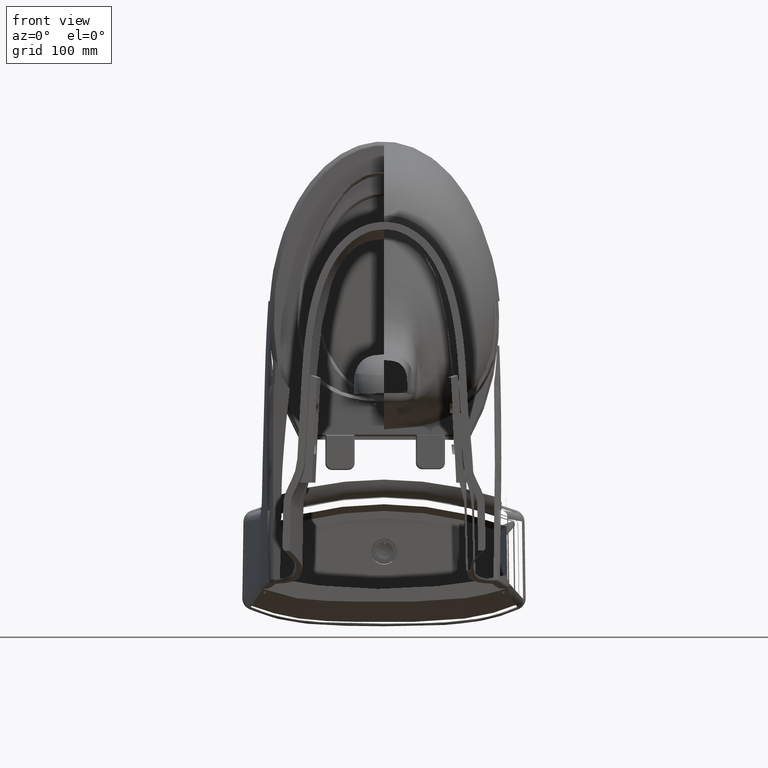
[diagram: clean part render]
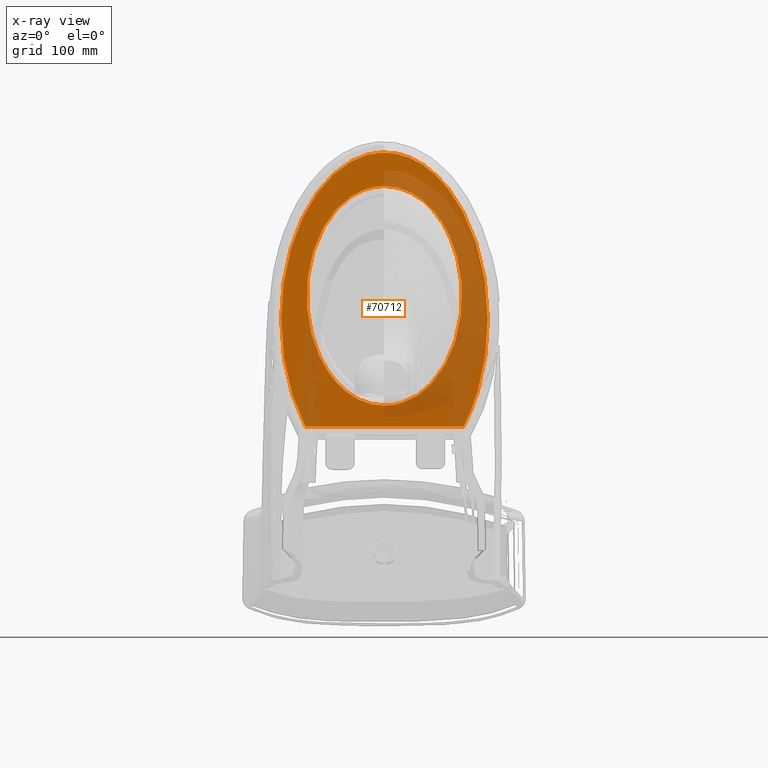
[diagram: x-ray — body ghosted, one internal face saturated and labeled with its STEP entity id]
A machine part, front view, then the same camera in x-ray: the body is ghosted and one INTERNAL B-rep face — a face not visible from any outside direction — is saturated and labeled: STEP entity #70712.
In plain terms, the highlighted planar face has unit normal (0, 1, -0).
Its self-contained STEP definition (entity closure, byte-faithful):
#1371 = CARTESIAN_POINT ( 'NONE',  ( 1.240968298695236200, -2.684542106769292100, 0.8014564814533071700 ) ) ;
#1906 = CARTESIAN_POINT ( 'NONE',  ( -5.947756170995580400, -10.83965842407593700, 0.8014564814530709100 ) ) ;
#2520 = CARTESIAN_POINT ( 'NONE',  ( -3.966237316785021800, -15.54800794863601800, 0.8014564814530709100 ) ) ;
#3139 = CARTESIAN_POINT ( 'NONE',  ( -6.199532777339077100, -9.019044728951893600, 0.8014564814530709100 ) ) ;
#3760 = CARTESIAN_POINT ( 'NONE',  ( -6.239075925550421800, -7.137015455814386100, 0.8014564814530709100 ) ) ;
#4395 = CARTESIAN_POINT ( 'NONE',  ( -0.05664133506210503000, -17.87697769300197200, 0.8014564814530706900 ) ) ;
#5030 = CARTESIAN_POINT ( 'NONE',  ( 0.6906510693830956200, -17.81717881420490500, 0.8014564814530708000 ) ) ;
#5651 = CARTESIAN_POINT ( 'NONE',  ( 0.8075040576416416800, -17.79409423968686000, 0.8014564814530709100 ) ) ;
#6291 = CARTESIAN_POINT ( 'NONE',  ( -1.534869083145630600, -17.56058676425475400, 0.8014564814530711300 ) ) ;
#6728 = ORIENTED_EDGE ( 'NONE', *, *, #165193, .T. ) ;
#6935 = CARTESIAN_POINT ( 'NONE',  ( -2.141691719875178800, -17.25438917256130000, 0.8014564814530711300 ) ) ;
#7571 = CARTESIAN_POINT ( 'NONE',  ( 5.630903220650637300, -12.23976193498531400, 0.8014564814530706900 ) ) ;
#8163 = CARTESIAN_POINT ( 'NONE',  ( 2.595303785134124700, -16.96651844163959700, 0.8014564814530709100 ) ) ;
#8796 = CARTESIAN_POINT ( 'NONE',  ( 4.581160346224343100, -14.66164843461077500, 0.8014564814530709100 ) ) ;
#9452 = CARTESIAN_POINT ( 'NONE',  ( 3.187847616033153000, -16.46303825487099100, 0.8014564814530709100 ) ) ;
#10085 = CARTESIAN_POINT ( 'NONE',  ( 3.956977364715432700, -15.59802585415152800, 0.8014564814530708000 ) ) ;
#10333 = CARTESIAN_POINT ( 'NONE',  ( 0.004875241719937198200, -15.83875321597047200, 0.8014564814530610300 ) ) ;
#10422 = CARTESIAN_POINT ( 'NONE',  ( -2.299521165261417400, -3.191794987996063400, 0.8014564814531497400 ) ) ;
#10807 = EDGE_CURVE ( 'NONE', #66304, #59385, #149864, .T. ) ;
#10944 = CARTESIAN_POINT ( 'NONE',  ( 1.211927670699437300, -15.72593295253543700, 0.8014564814529923100 ) ) ;
#11307 = CARTESIAN_POINT ( 'NONE',  ( 5.716082604018641400, -3.479267114095853800, 0.8014564814530709100 ) ) ;
#11642 = CARTESIAN_POINT ( 'NONE',  ( -3.990440704665354900, -5.385347802574803400, 0.8014564814531497400 ) ) ;
#13034 = CARTESIAN_POINT ( 'NONE',  ( -5.714924341305762200, -3.691343637583155900, 0.8014564814530708000 ) ) ;
#13218 = CARTESIAN_POINT ( 'NONE',  ( 5.783745271209288500, -3.729234260764460200, 0.8014564814530709100 ) ) ;
#15977 = CARTESIAN_POINT ( 'NONE',  ( -4.769680667701305900, -14.26601834037687400, 0.8014564814530709100 ) ) ;
#16079 = CARTESIAN_POINT ( 'NONE',  ( 0.3459649167781496100, -2.507858690438976400, 0.8014564814530709100 ) ) ;
#16595 = CARTESIAN_POINT ( 'NONE',  ( -6.163970506133948000, -6.046667471298926300, 0.8014564814530709100 ) ) ;
#17224 = CARTESIAN_POINT ( 'NONE',  ( -5.898511342605402800, -11.08493823618979900, 0.8014564814530709100 ) ) ;
#17838 = CARTESIAN_POINT ( 'NONE',  ( -6.247970392839698100, -7.745208958607803700, 0.8014564814530712500 ) ) ;
#17943 = CARTESIAN_POINT ( 'NONE',  ( 4.127243148562992100, -5.794126937094490300, 0.8014564814528739600 ) ) ;
#18492 = CARTESIAN_POINT ( 'NONE',  ( -6.021573115804661900, -10.44704619348906500, 0.8014564814530709100 ) ) ;
#19112 = CARTESIAN_POINT ( 'NONE',  ( 1.639415793942079900, -17.52386176065036200, 0.8014564814530709100 ) ) ;
#19756 = CARTESIAN_POINT ( 'NONE',  ( -0.9198044947539819600, -17.76262567465124300, 0.8014564814530712500 ) ) ;
#20395 = CARTESIAN_POINT ( 'NONE',  ( 1.583781975787043100, -17.54805669044251500, 0.8014564814530709100 ) ) ;
#21041 = CARTESIAN_POINT ( 'NONE',  ( 1.782871851959761100, -17.46033137731072700, 0.8014564814530711300 ) ) ;
#21364 = B_SPLINE_CURVE_WITH_KNOTS ( 'NONE', 13,
 ( #98325, #112500, #24558, #111869, #10422, #126645, #99583, #187050, #11642, #172266, #127295, #40549, #98947, #170348, #156827, #114383, #143301, #25197, #26431, #97042, #68764, #41168, #173529, #146460, #116906, #174139 ),
 .UNSPECIFIED., .F., .F.,
 ( 14, 12, 14 ),
 ( 0.0000000000000000000, 0.2500000000000000000, 0.5000000000000000000 ),
 .UNSPECIFIED. ) ;
#21673 = CARTESIAN_POINT ( 'NONE',  ( 0.9521835702529009000, -17.76342507320255500, 0.8014564814530709100 ) ) ;
#22301 = CARTESIAN_POINT ( 'NONE',  ( 5.639326731560483800, -12.21258178873368100, 0.8014564814530709100 ) ) ;
#22969 = CARTESIAN_POINT ( 'NONE',  ( 5.526396970099152200, -12.56388120790450500, 0.8014564814530708000 ) ) ;
#23591 = CARTESIAN_POINT ( 'NONE',  ( 3.239102261980864500, -16.41341073959586100, 0.8014564814530709100 ) ) ;
#24226 = CARTESIAN_POINT ( 'NONE',  ( 3.869755205188124800, -15.71072403096198600, 0.8014564814530711300 ) ) ;
#24484 = CARTESIAN_POINT ( 'NONE',  ( 4.039656141739757600, -12.96038158822442700, 0.8014564814527165300 ) ) ;
#24558 = CARTESIAN_POINT ( 'NONE',  ( -1.162691388099606400, -2.619786942828740400, 0.8014564814530709100 ) ) ;
#24834 = CARTESIAN_POINT ( 'NONE',  ( 3.227324380330975000, -16.42488853553394200, 0.8014564814530708000 ) ) ;
#25102 = CARTESIAN_POINT ( 'NONE',  ( 4.737723036546063000, -8.785224570314961000, 0.8014564814530709100 ) ) ;
#25197 = CARTESIAN_POINT ( 'NONE',  ( -4.006436841311028700, -12.94845559111809400, 0.8014564814544489200 ) ) ;
#26111 = CARTESIAN_POINT ( 'NONE',  ( 6.110296494830858000, -5.279716518378641000, 0.8014564814530708000 ) ) ;
#26431 = CARTESIAN_POINT ( 'NONE',  ( -3.671287616857093400, -13.59915983488187800, 0.8014564814513780400 ) ) ;
#26539 = CARTESIAN_POINT ( 'NONE',  ( -5.290535115942503800, -2.400417887469080900, 0.8014564814530709100 ) ) ;
#26713 = CARTESIAN_POINT ( 'NONE',  ( 6.259785837670738000, -6.624811516017183000, 0.8014564814530709100 ) ) ;
#27158 = CARTESIAN_POINT ( 'NONE',  ( -5.691819743238865700, -3.607911997084265900, 0.8014564814530709100 ) ) ;
#27988 = CARTESIAN_POINT ( 'NONE',  ( 6.255548424718084800, -6.564222572516703400, 0.8014564814530708000 ) ) ;
#30736 = CARTESIAN_POINT ( 'NONE',  ( -4.618494458463075600, -14.54280955696831900, 0.8014564814530709100 ) ) ;
#30842 = CARTESIAN_POINT ( 'NONE',  ( 2.335173976338740200, -3.297786142074016000, 0.8014564814534253000 ) ) ;
#31363 = CARTESIAN_POINT ( 'NONE',  ( -4.496209246931029700, -14.75809433578736800, 0.8014564814530708000 ) ) ;
#31974 = CARTESIAN_POINT ( 'NONE',  ( -6.229450814510581600, -8.596480132480540000, 0.8014564814530708000 ) ) ;
#32599 = CARTESIAN_POINT ( 'NONE',  ( -6.166292232337929700, -9.380090480935754400, 0.8014564814530713600 ) ) ;
#32701 = CARTESIAN_POINT ( 'NONE',  ( 0.04435587393258264700, -2.506965736178300200, 0.8014564814530709100 ) ) ;
#33217 = CARTESIAN_POINT ( 'NONE',  ( -5.663326181756962000, -12.00932190253830500, 0.8014564814530708000 ) ) ;
#33845 = CARTESIAN_POINT ( 'NONE',  ( 0.3263108208621808800, -17.86912279845319400, 0.8014564814530711300 ) ) ;
#34502 = CARTESIAN_POINT ( 'NONE',  ( -3.453011646677588400, -16.16702950882042000, 0.8014564814530708000 ) ) ;
#35129 = CARTESIAN_POINT ( 'NONE',  ( -3.345502889946597900, -16.27961201937255000, 0.8014564814530709100 ) ) ;
#35773 = CARTESIAN_POINT ( 'NONE',  ( -0.03930589759641477800, -17.87725345947399800, 0.8014564814530709100 ) ) ;
#36399 = CARTESIAN_POINT ( 'NONE',  ( -3.264029689621101800, -16.36212643206645700, 0.8014564814530708000 ) ) ;
#37043 = CARTESIAN_POINT ( 'NONE',  ( 5.965856426425041500, -10.94774584797538200, 0.8014564814530712500 ) ) ;
#37665 = CARTESIAN_POINT ( 'NONE',  ( 3.235206158624512900, -16.41721371039418300, 0.8014564814530711300 ) ) ;
#38311 = CARTESIAN_POINT ( 'NONE',  ( 4.087783624705485500, -15.42559366199654200, 0.8014564814530709100 ) ) ;
#38961 = CARTESIAN_POINT ( 'NONE',  ( 3.132368645519703500, -16.51574858276402900, 0.8014564814530708000 ) ) ;
#39603 = CARTESIAN_POINT ( 'NONE',  ( 4.875470657251735700, -14.12794701863051500, 0.8014564814530709100 ) ) ;
#40549 = CARTESIAN_POINT ( 'NONE',  ( -4.615319703866141800, -7.604029781740157600, 0.8014564814530709100 ) ) ;
#41168 = CARTESIAN_POINT ( 'NONE',  ( -2.332031538442136800, -15.14131184314959800, 0.8014564814538582800 ) ) ;
#41282 = CARTESIAN_POINT ( 'NONE',  ( -5.493298218250210100, -2.951082364904034500, 0.8014564814530708000 ) ) ;
#41470 = CARTESIAN_POINT ( 'NONE',  ( 5.779974884412668600, -3.715224430820246700, 0.8014564814530709100 ) ) ;
#42119 = EDGE_LOOP ( 'NONE', ( #139613, #176429 ) ) ;
#45485 = CARTESIAN_POINT ( 'NONE',  ( -4.602753105905509100, -14.57066002788529100, 0.8014564814530709100 ) ) ;
#46118 = CARTESIAN_POINT ( 'NONE',  ( -6.242803858819738300, -8.232417230606985800, 0.8014564814530711300 ) ) ;
#46179 = FACE_BOUND ( 'NONE', #42119, .T. ) ;
#46741 = CARTESIAN_POINT ( 'NONE',  ( -5.718231790910062200, -11.81641995727117400, 0.8014564814530709100 ) ) ;
#47379 = CARTESIAN_POINT ( 'NONE',  ( -6.247464078688127000, -7.562589920433946800, 0.8014564814530711300 ) ) ;
#47993 = CARTESIAN_POINT ( 'NONE',  ( -5.614509776426436000, -12.17355475909043200, 0.8014564814530712500 ) ) ;
#48635 = CARTESIAN_POINT ( 'NONE',  ( 2.402057215545130300, -17.10010301568912200, 0.8014564814530711300 ) ) ;
#49275 = CARTESIAN_POINT ( 'NONE',  ( -2.473877929497987800, -17.03250339575690800, 0.8014564814530711300 ) ) ;
#49912 = CARTESIAN_POINT ( 'NONE',  ( -1.906979528925940100, -17.38310565016584500, 0.8014564814530709100 ) ) ;
#50547 = CARTESIAN_POINT ( 'NONE',  ( -1.788630084596925400, -17.44261056660143400, 0.8014564814530712500 ) ) ;
#51166 = CARTESIAN_POINT ( 'NONE',  ( -0.8679657010740224900, -17.77511244997692300, 0.8014564814530709100 ) ) ;
#51796 = CARTESIAN_POINT ( 'NONE',  ( 5.977882389010592800, -10.88996256859313400, 0.8014564814530709100 ) ) ;
#52449 = CARTESIAN_POINT ( 'NONE',  ( 6.157682086634985700, -9.832841749056616000, 0.8014564814530708000 ) ) ;
#53082 = CARTESIAN_POINT ( 'NONE',  ( 4.613156774431846700, -14.60626414477391100, 0.8014564814530711300 ) ) ;
#53716 = CARTESIAN_POINT ( 'NONE',  ( 5.714869513417023800, -11.96607152547441700, 0.8014564814530708000 ) ) ;
#54292 = B_SPLINE_CURVE_WITH_KNOTS ( 'NONE', 3,
 ( #100316, #56057, #174891, #84901, #114495, #157561, #84291, #26539, #129266, #174255, #41282, #100923, #115132, #27158, #129890, #13034, #104493, #165526, #76146, #177852, #179100, #91568, #150127, #16595, #89704, #3760, #47379, #17838, #149493, #121208, #46118, #31974, #3139, #118705, #106390, #32599, #105755, #120617, #103869, #18492, #62080, #134691, #135296, #163653, #1906, #17224, #90968, #46741, #33217, #92235, #135946, #47993, #62721, #134070, #148242, #119980, #75526, #164886, #119328, #60245, #150749, #77412, #180369, #15977, #76781, #179750, #30736, #133458, #45485, #163022, #31363, #74929, #148863, #60864, #178476, #90335, #2520, #105114, #61467, #164274, #182292, #34502, #35129, #137842, #36399, #182923, #107675, #152049, #137205, #168067, #123127, #92880, #63977, #122487, #153283, #78690, #49275, #94796, #6935, #49912, #50547, #166791, #94158, #109598, #151389, #65243, #6291, #123744, #139146, #183528, #19756, #124405, #51166, #152678, #64612, #181005, #181667, #93519, #4395, #35773, #108969, #79973, #33845, #121861, #5030, #167426, #108311, #153931, #63363, #5651, #21673, #65871, #168702, #80624, #20395, #79333, #166164, #107035, #19112, #21041, #138505, #78054, #136581, #48635, #171297, #112794, #83212, #141677, #8163, #81275, #186061, #38961, #9452, #141040, #24834, #37665, #23591, #185423, #110225, #97981, #24226, #157132, #67781, #10085, #126309, #170646, #38311, #126945, #155223, #169339, #8796, #82578, #53082, #127594, #83853, #39603, #142320, #54348, #125649, #139749, #111539, #184173, #110894, #69070, #22969, #171920, #95426, #7571, #22301, #53716, #156482, #125022, #68419, #37043, #51796, #140411, #154582, #66523, #52449, #67146, #97325, #96044, #96692, #169999, #81923, #184787, #155859, #112171, #26713, #27988, #174436, #99253, #143586, #26111, #159643, #114693, #84468, #55637, #114058, #144847, #70270, #128201, #172559, #13218, #41470, #11307, #158401, #173810, #86340, #142964, #56860, #188591, #115307, #130720, #175077, #128820, #115932 ),
 .UNSPECIFIED., .F., .F.,
 ( 4, 1, 1, 1, 1, 2, 2, 1, 1, 1, 2, 2, 1, 1, 2, 2, 2, 1, 1, 2, 2, 1, 1, 1, 2, 2, 1, 1, 1, 1, 2, 2, 1, 1, 1, 1, 2, 2, 1, 1, 1, 1, 2, 2, 1, 1, 1, 1, 1, 2, 2, 1, 1, 1, 1, 1, 2, 2, 1, 1, 1, 1, 1, 2, 2, 1, 1, 1, 1, 1, 2, 2, 1, 1, 1, 1, 1, 2, 2, 1, 1, 1, 2, 2, 1, 1, 1, 1, 2, 2, 1, 1, 1, 1, 1, 2, 2, 1, 1, 1, 1, 1, 2, 2, 1, 1, 1, 1, 1, 2, 2, 1, 1, 1, 1, 1, 2, 2, 1, 1, 1, 1, 1, 2, 2, 1, 1, 1, 1, 2, 2, 1, 1, 1, 1, 2, 2, 1, 1, 1, 2, 2, 1, 1, 1, 2, 2, 1, 1, 2, 2, 2, 1, 1, 2, 2, 1, 1, 1, 2, 2, 1, 1, 1, 1, 2, 2, 1, 1, 1, 1, 1, 2, 2, 4 ),
 ( 0.0000000000000000000, 0.01562499999999806100, 0.02343749999999708200, 0.02734374999999660000, 0.02929687499999634300, 0.03027343749999623900, 0.03124999999999613500, 0.04687499999999447000, 0.05468749999999361600, 0.05859374999999318600, 0.06054687499999296400, 0.06249999999999274200, 0.07812499999999096600, 0.08593749999999007700, 0.08984374999998961900, 0.09374999999998916100, 0.1249999999999854300, 0.1406249999999834900, 0.1484374999999825400, 0.1523437499999820400, 0.1562499999999815100, 0.1718749999999797100, 0.1796874999999787900, 0.1835937499999783500, 0.1855468749999781600, 0.1874999999999779600, 0.2031249999999764600, 0.2109374999999757100, 0.2148437499999753300, 0.2167968749999751300, 0.2177734374999750500, 0.2187499999999749600, 0.2343749999999736900, 0.2421874999999729700, 0.2460937499999726600, 0.2480468749999725500, 0.2490234374999723800, 0.2499999999999722400, 0.2656249999999690800, 0.2734374999999675300, 0.2773437499999666900, 0.2792968749999662500, 0.2802734374999661400, 0.2812499999999660300, 0.2968749999999646900, 0.3046874999999639700, 0.3085937499999636400, 0.3105468749999635300, 0.3115234374999634200, 0.3120117187499633600, 0.3124999999999633100, 0.3281249999999634700, 0.3359374999999635800, 0.3398437499999635800, 0.3417968749999637000, 0.3427734374999638100, 0.3432617187499638100, 0.3437499999999638600, 0.3593749999999622500, 0.3671874999999615300, 0.3710937499999612000, 0.3730468749999610900, 0.3740234374999610900, 0.3745117187499610900, 0.3749999999999610300, 0.3906249999999640800, 0.3984374999999655800, 0.4023437499999662500, 0.4042968749999666400, 0.4052734374999668000, 0.4057617187499668600, 0.4062499999999669200, 0.4218749999999709700, 0.4296874999999730200, 0.4335937499999740200, 0.4355468749999745200, 0.4365234374999748000, 0.4370117187499749600, 0.4374999999999751300, 0.4531249999999789600, 0.4609374999999808500, 0.4648437499999817900, 0.4667968749999821800, 0.4687499999999826300, 0.4843749999999861200, 0.4921874999999878400, 0.4960937499999887300, 0.4980468749999891200, 0.4990234374999893400, 0.4999999999999895600, 0.5156249999999931200, 0.5234374999999947800, 0.5273437499999955600, 0.5292968749999960000, 0.5302734374999962300, 0.5307617187499964500, 0.5312499999999965600, 0.5468750000000001100, 0.5546875000000018900, 0.5585937500000027800, 0.5605468750000032200, 0.5615234375000034400, 0.5620117187500035500, 0.5625000000000035500, 0.5781250000000083300, 0.5859375000000106600, 0.5898437500000117700, 0.5917968750000122100, 0.5927734375000124300, 0.5932617187500125500, 0.5937500000000125500, 0.6093750000000142100, 0.6171875000000149900, 0.6210937500000154300, 0.6230468750000155400, 0.6240234375000157700, 0.6245117187500158800, 0.6250000000000158800, 0.6406250000000185400, 0.6484375000000197600, 0.6523437500000203200, 0.6542968750000205400, 0.6552734375000206500, 0.6557617187500207600, 0.6562500000000207600, 0.6718750000000215400, 0.6796875000000218700, 0.6835937500000220900, 0.6855468750000220900, 0.6865234375000219800, 0.6875000000000219800, 0.7031250000000206500, 0.7109375000000199800, 0.7148437500000196500, 0.7167968750000195400, 0.7177734375000194300, 0.7187500000000192100, 0.7343750000000174300, 0.7421875000000164300, 0.7460937500000159900, 0.7480468750000157700, 0.7500000000000154300, 0.7656250000000133200, 0.7734375000000121000, 0.7773437500000116600, 0.7792968750000115500, 0.7812500000000114400, 0.7968750000000107700, 0.8046875000000104400, 0.8085937500000103300, 0.8125000000000102100, 0.8437500000000091000, 0.8593750000000085500, 0.8671875000000082200, 0.8710937500000081000, 0.8750000000000079900, 0.8906250000000072200, 0.8984375000000068800, 0.9023437500000065500, 0.9042968750000064400, 0.9062500000000063300, 0.9218750000000053300, 0.9296875000000050000, 0.9335937500000046600, 0.9355468750000045500, 0.9365234375000045500, 0.9375000000000045500, 0.9531250000000035500, 0.9609375000000032200, 0.9648437500000028900, 0.9667968750000027800, 0.9677734375000027800, 0.9682617187500026600, 0.9687500000000026600, 1.000000000000000000 ),
 .UNSPECIFIED. ) ;
#54348 = CARTESIAN_POINT ( 'NONE',  ( 5.113687122078085100, -13.61903745093074400, 0.8014564814530709100 ) ) ;
#54617 = CARTESIAN_POINT ( 'NONE',  ( 4.635793255878346600, -7.618482425090552300, 0.8014564814531496300 ) ) ;
#55637 = CARTESIAN_POINT ( 'NONE',  ( 6.036873824617751800, -4.839288081711655900, 0.8014564814530709100 ) ) ;
#55883 = CARTESIAN_POINT ( 'NONE',  ( 1.798103559274083300, -15.49479930559843200, 0.8014564814532283400 ) ) ;
#56057 = CARTESIAN_POINT ( 'NONE',  ( -4.867014694288680900, -1.433066174174042000, 0.8014564814530709100 ) ) ;
#56860 = CARTESIAN_POINT ( 'NONE',  ( 5.374947039034871900, -2.461510313343645800, 0.8014564814530709100 ) ) ;
#59385 = VERTEX_POINT ( 'NONE', #134444 ) ;
#60245 = CARTESIAN_POINT ( 'NONE',  ( -5.163398983818878700, -13.42705420282346500, 0.8014564814530708000 ) ) ;
#60864 = CARTESIAN_POINT ( 'NONE',  ( -4.051423616575282200, -15.43263228495247900, 0.8014564814530709100 ) ) ;
#61467 = CARTESIAN_POINT ( 'NONE',  ( -3.955470917205417000, -15.56235020173937900, 0.8014564814530711300 ) ) ;
#62080 = CARTESIAN_POINT ( 'NONE',  ( -5.984378624144874000, -10.65101267948348400, 0.8014564814530709100 ) ) ;
#62721 = CARTESIAN_POINT ( 'NONE',  ( -5.610352475044829000, -12.18725712905154500, 0.8014564814530712500 ) ) ;
#63363 = CARTESIAN_POINT ( 'NONE',  ( 0.8032319919767108000, -17.79499230581747700, 0.8014564814530709100 ) ) ;
#63977 = CARTESIAN_POINT ( 'NONE',  ( -2.527547717853605700, -16.99412656243239200, 0.8014564814530711300 ) ) ;
#64612 = CARTESIAN_POINT ( 'NONE',  ( -0.5064620705378450900, -17.84653951723125700, 0.8014564814530706900 ) ) ;
#65243 = CARTESIAN_POINT ( 'NONE',  ( -1.673829324090582600, -17.49695159637186500, 0.8014564814530709100 ) ) ;
#65871 = CARTESIAN_POINT ( 'NONE',  ( 1.161389366710030100, -17.70721669066449900, 0.8014564814530708000 ) ) ;
#66304 = VERTEX_POINT ( 'NONE', #79234 ) ;
#66523 = CARTESIAN_POINT ( 'NONE',  ( 6.098938981676759000, -10.24822712125768300, 0.8014564814530708000 ) ) ;
#67146 = CARTESIAN_POINT ( 'NONE',  ( 6.179855732342658400, -9.653681933408762500, 0.8014564814530706900 ) ) ;
#67781 = CARTESIAN_POINT ( 'NONE',  ( 3.946127899656662700, -15.61223712350132000, 0.8014564814530708000 ) ) ;
#68419 = CARTESIAN_POINT ( 'NONE',  ( 5.947579416433134400, -11.03427060600473900, 0.8014564814530709100 ) ) ;
#68764 = CARTESIAN_POINT ( 'NONE',  ( -2.828496237663000300, -14.70555735896455800, 0.8014564814517717300 ) ) ;
#69070 = CARTESIAN_POINT ( 'NONE',  ( 5.396837382160453200, -12.93502373039086000, 0.8014564814530711300 ) ) ;
#69314 = CARTESIAN_POINT ( 'NONE',  ( 4.481990028266142000, -6.862804092464567200, 0.8014564814533071700 ) ) ;
#70270 = CARTESIAN_POINT ( 'NONE',  ( 5.827929684075997800, -3.897117848089873200, 0.8014564814530709100 ) ) ;
#70712 = ADVANCED_FACE ( 'NONE', ( #46179, #112889 ), #118850, .T. ) ;
#70721 = EDGE_LOOP ( 'NONE', ( #6728, #156634 ) ) ;
#71801 = CARTESIAN_POINT ( 'NONE',  ( 3.632742256031693100, -4.838609031606299700, 0.8014564814530709100 ) ) ;
#74929 = CARTESIAN_POINT ( 'NONE',  ( -4.340472813108797300, -15.01349006345554900, 0.8014564814530708000 ) ) ;
#75526 = CARTESIAN_POINT ( 'NONE',  ( -5.226071466417528700, -13.27613822995019700, 0.8014564814530711300 ) ) ;
#76146 = CARTESIAN_POINT ( 'NONE',  ( -5.950456349383299100, -4.688107130707772200, 0.8014564814530706900 ) ) ;
#76250 = CARTESIAN_POINT ( 'NONE',  ( 3.812355171453977000, -5.142208696007874600, 0.8014564814530315000 ) ) ;
#76781 = CARTESIAN_POINT ( 'NONE',  ( -4.683974049990239600, -14.42504336245993500, 0.8014564814530709100 ) ) ;
#76925 = DIRECTION ( 'NONE',  ( 1.000000000000000000, 0.0000000000000000000, -0.0000000000000000000 ) ) ;
#77412 = CARTESIAN_POINT ( 'NONE',  ( -5.068433766238507900, -13.65082218400437800, 0.8014564814530709100 ) ) ;
#78054 = CARTESIAN_POINT ( 'NONE',  ( 2.226139356623318300, -17.21498611943917800, 0.8014564814530709100 ) ) ;
#78690 = CARTESIAN_POINT ( 'NONE',  ( -2.478069058528978200, -17.02953520652923900, 0.8014564814530711300 ) ) ;
#79234 = CARTESIAN_POINT ( 'NONE',  ( 0.004875241719937198200, -15.83875321597047200, 0.8014564814530610300 ) ) ;
#79333 = CARTESIAN_POINT ( 'NONE',  ( 1.613783737434580700, -17.53510236116926900, 0.8014564814530708000 ) ) ;
#79973 = CARTESIAN_POINT ( 'NONE',  ( 0.1174877923553310100, -17.87870722981658400, 0.8014564814530708000 ) ) ;
#80624 = CARTESIAN_POINT ( 'NONE',  ( 1.523710796891638800, -17.57333104585746900, 0.8014564814530711300 ) ) ;
#81213 = DIRECTION ( 'NONE',  ( 1.000000000000000000, 0.0000000000000000000, 0.0000000000000000000 ) ) ;
#81275 = CARTESIAN_POINT ( 'NONE',  ( 2.794345245133157600, -16.81498462229007600, 0.8014564814530711300 ) ) ;
#81923 = CARTESIAN_POINT ( 'NONE',  ( 6.298533122543173800, -7.717161024993780300, 0.8014564814530709100 ) ) ;
#82578 = CARTESIAN_POINT ( 'NONE',  ( 4.600375269976535900, -14.62844692398004300, 0.8014564814530709100 ) ) ;
#83212 = CARTESIAN_POINT ( 'NONE',  ( 2.452047728801289800, -17.06589151676450900, 0.8014564814530711300 ) ) ;
#83350 = EDGE_CURVE ( 'NONE', #178353, #139523, #124349, .T. ) ;
#83853 = CARTESIAN_POINT ( 'NONE',  ( 4.728259831493555300, -14.40477816286287000, 0.8014564814530709100 ) ) ;
#84291 = CARTESIAN_POINT ( 'NONE',  ( -5.280506575346852700, -2.374662859317149300, 0.8014564814530709100 ) ) ;
#84468 = CARTESIAN_POINT ( 'NONE',  ( 6.081583113775293400, -5.103021029029210200, 0.8014564814530711300 ) ) ;
#84901 = CARTESIAN_POINT ( 'NONE',  ( -5.157233546226325200, -2.068956905297137300, 0.8014564814530711300 ) ) ;
#85343 = CARTESIAN_POINT ( 'NONE',  ( 4.687082599273228600, -8.004590614208661100, 0.8014564814530315000 ) ) ;
#86340 = CARTESIAN_POINT ( 'NONE',  ( 5.426059147573622200, -2.597678369639393000, 0.8014564814530709100 ) ) ;
#89190 = CARTESIAN_POINT ( 'NONE',  ( 3.245329330667480400, -4.264830750681102100, 0.8014564814530709100 ) ) ;
#89704 = CARTESIAN_POINT ( 'NONE',  ( -6.219531645516896700, -6.773157270916646800, 0.8014564814530711300 ) ) ;
#90335 = CARTESIAN_POINT ( 'NONE',  ( -3.976950098154681300, -15.53369458560495900, 0.8014564814530709100 ) ) ;
#90968 = CARTESIAN_POINT ( 'NONE',  ( -5.821419450171736900, -11.42641920791193800, 0.8014564814530709100 ) ) ;
#91050 = CARTESIAN_POINT ( 'NONE',  ( 2.816176387166968700, -3.742530940712204900, 0.8014564814531889300 ) ) ;
#91568 = CARTESIAN_POINT ( 'NONE',  ( -6.015086734458088300, -5.038652504397668400, 0.8014564814530709100 ) ) ;
#92235 = CARTESIAN_POINT ( 'NONE',  ( -5.635045432299842900, -12.10524826781875500, 0.8014564814530709100 ) ) ;
#92880 = CARTESIAN_POINT ( 'NONE',  ( -2.585047534466167200, -16.95209218987698200, 0.8014564814530709100 ) ) ;
#93519 = CARTESIAN_POINT ( 'NONE',  ( -0.08264105807652739900, -17.87647534603538800, 0.8014564814530709100 ) ) ;
#94158 = CARTESIAN_POINT ( 'NONE',  ( -1.699433411226364700, -17.48511592539269800, 0.8014564814530712500 ) ) ;
#94796 = CARTESIAN_POINT ( 'NONE',  ( -2.339467830330887100, -17.12742080078587700, 0.8014564814530708000 ) ) ;
#95426 = CARTESIAN_POINT ( 'NONE',  ( 5.613865455239550600, -12.29412996068613700, 0.8014564814530709100 ) ) ;
#96044 = CARTESIAN_POINT ( 'NONE',  ( 6.200690440999404800, -9.474061018703389800, 0.8014564814530708000 ) ) ;
#96692 = CARTESIAN_POINT ( 'NONE',  ( 6.258248016659778500, -8.932768870345757500, 0.8014564814530709100 ) ) ;
#97042 = CARTESIAN_POINT ( 'NONE',  ( -3.278666662520481000, -14.19029288181495500, 0.8014564814547243700 ) ) ;
#97325 = CARTESIAN_POINT ( 'NONE',  ( 6.193971058213772800, -9.533989275582204200, 0.8014564814530706900 ) ) ;
#97981 = CARTESIAN_POINT ( 'NONE',  ( 3.766787775077713500, -15.83939463294194600, 0.8014564814530709100 ) ) ;
#98325 = CARTESIAN_POINT ( 'NONE',  ( 0.04435587393258264700, -2.506965736178300200, 0.8014564814530709100 ) ) ;
#98947 = CARTESIAN_POINT ( 'NONE',  ( -4.686279130500000000, -8.386773369066929700, 0.8014564814530709100 ) ) ;
#99253 = CARTESIAN_POINT ( 'NONE',  ( 6.197191441780910600, -5.902093605652314800, 0.8014564814530708000 ) ) ;
#99583 = CARTESIAN_POINT ( 'NONE',  ( -3.254330102192126700, -4.141388914488190100, 0.8014564814532284500 ) ) ;
#100316 = CARTESIAN_POINT ( 'NONE',  ( -4.769785798547712100, -1.246485298272595800, 0.8014564814530675800 ) ) ;
#100923 = CARTESIAN_POINT ( 'NONE',  ( -5.612147787399592000, -3.331726970089411200, 0.8014564814530708000 ) ) ;
#103869 = CARTESIAN_POINT ( 'NONE',  ( -6.088987950822173400, -10.03643567002026600, 0.8014564814530708000 ) ) ;
#104493 = CARTESIAN_POINT ( 'NONE',  ( -5.783315416153089700, -3.943354373580915300, 0.8014564814530711300 ) ) ;
#104715 = CARTESIAN_POINT ( 'NONE',  ( -4.769785798547712100, -1.246485298272595800, 0.8014564814530675800 ) ) ;
#104737 = AXIS2_PLACEMENT_3D ( 'NONE', #176113, #122006, #76925 ) ;
#105114 = CARTESIAN_POINT ( 'NONE',  ( -3.959088442794812300, -15.55753837080046500, 0.8014564814530709100 ) ) ;
#105224 = CARTESIAN_POINT ( 'NONE',  ( 0.9464000926840158100, -2.596910632786614000, 0.8014564814529527800 ) ) ;
#105755 = CARTESIAN_POINT ( 'NONE',  ( -6.163209917040485500, -9.410192186251565600, 0.8014564814530712500 ) ) ;
#105863 = CARTESIAN_POINT ( 'NONE',  ( 2.581763599390432900, -3.509816954157480400, 0.8014564814528346600 ) ) ;
#106390 = CARTESIAN_POINT ( 'NONE',  ( -6.172273319252606200, -9.319983092834421600, 0.8014564814530709100 ) ) ;
#107035 = CARTESIAN_POINT ( 'NONE',  ( 1.635199874977995000, -17.52572089795938500, 0.8014564814530709100 ) ) ;
#107675 = CARTESIAN_POINT ( 'NONE',  ( -3.244525388819934400, -16.38153077727198700, 0.8014564814530709100 ) ) ;
#108311 = CARTESIAN_POINT ( 'NONE',  ( 0.7815888032053680500, -17.79948238563895300, 0.8014564814530706900 ) ) ;
#108969 = CARTESIAN_POINT ( 'NONE',  ( -0.03068295315298393000, -17.87736135986687100, 0.8014564814530708000 ) ) ;
#109598 = CARTESIAN_POINT ( 'NONE',  ( -1.686659987164584400, -17.49103645318177400, 0.8014564814530711300 ) ) ;
#110225 = CARTESIAN_POINT ( 'NONE',  ( 3.556954043477389000, -16.08766632387012100, 0.8014564814530709100 ) ) ;
#110620 = EDGE_CURVE ( 'NONE', #59385, #66304, #21364, .T. ) ;
#110894 = CARTESIAN_POINT ( 'NONE',  ( 5.275196927293007000, -13.24344270203350100, 0.8014564814530709100 ) ) ;
#111539 = CARTESIAN_POINT ( 'NONE',  ( 5.178696708247569400, -13.46978761944575500, 0.8014564814530711300 ) ) ;
#111869 = CARTESIAN_POINT ( 'NONE',  ( -1.748845458593307100, -2.850921576658267800, 0.8014564814530315000 ) ) ;
#112171 = CARTESIAN_POINT ( 'NONE',  ( 6.267563252923704200, -6.745904384536243200, 0.8014564814530706900 ) ) ;
#112500 = CARTESIAN_POINT ( 'NONE',  ( -0.5588622117090551500, -2.505179827655905600, 0.8014564814530709100 ) ) ;
#112794 = CARTESIAN_POINT ( 'NONE',  ( 2.443723565507832900, -17.07163219037345300, 0.8014564814530709100 ) ) ;
#112889 = FACE_OUTER_BOUND ( 'NONE', #70721, .T. ) ;
#113047 = CARTESIAN_POINT ( 'NONE',  ( 4.664561386337005000, -10.74168912329529000, 0.8014564814531103300 ) ) ;
#114058 = CARTESIAN_POINT ( 'NONE',  ( 5.969517769345772600, -4.491919519388768700, 0.8014564814530709100 ) ) ;
#114308 = CARTESIAN_POINT ( 'NONE',  ( 4.721084260314567500, -8.394051417291338500, 0.8014564814530709100 ) ) ;
#114383 = CARTESIAN_POINT ( 'NONE',  ( -4.483759975027562700, -11.50277406769289500, 0.8014564814535040100 ) ) ;
#114495 = CARTESIAN_POINT ( 'NONE',  ( -5.229832604525587800, -2.246495823223563900, 0.8014564814530708000 ) ) ;
#114693 = CARTESIAN_POINT ( 'NONE',  ( 6.086491228733866200, -5.132496060462820300, 0.8014564814530709100 ) ) ;
#114947 = CARTESIAN_POINT ( 'NONE',  ( 2.348739765607903400, -15.15391490479134600, 0.8014564814527558300 ) ) ;
#115132 = CARTESIAN_POINT ( 'NONE',  ( -5.668394819376718600, -3.524664243380978100, 0.8014564814530711300 ) ) ;
#115307 = CARTESIAN_POINT ( 'NONE',  ( 5.362603550121101600, -2.429232245297568300, 0.8014564814530711300 ) ) ;
#115932 = CARTESIAN_POINT ( 'NONE',  ( 4.832343025994092900, -1.246485298272834300, 0.8014564814530701400 ) ) ;
#116906 = CARTESIAN_POINT ( 'NONE',  ( -0.5983497418657605100, -15.83696550196850300, 0.8014564814530315000 ) ) ;
#118705 = CARTESIAN_POINT ( 'NONE',  ( -6.180988887383952200, -9.229783163258956000, 0.8014564814530708000 ) ) ;
#118850 = PLANE ( 'NONE',  #104737 ) ;
#119328 = CARTESIAN_POINT ( 'NONE',  ( -5.173938567274659800, -13.40198775239440100, 0.8014564814530709100 ) ) ;
#119444 = CARTESIAN_POINT ( 'NONE',  ( 1.528180900857519800, -2.799838188693701400, 0.8014564814526773400 ) ) ;
#119980 = CARTESIAN_POINT ( 'NONE',  ( -5.297296855800088800, -13.09833701753252400, 0.8014564814530709100 ) ) ;
#120617 = CARTESIAN_POINT ( 'NONE',  ( -6.134816412319362500, -9.679893704509963100, 0.8014564814530711300 ) ) ;
#120695 = CARTESIAN_POINT ( 'NONE',  ( 2.076510903216024100, -3.107910827127165400, 0.8014564814525986200 ) ) ;
#121208 = CARTESIAN_POINT ( 'NONE',  ( -6.247103069326177800, -7.927995547753084800, 0.8014564814530709100 ) ) ;
#121861 = CARTESIAN_POINT ( 'NONE',  ( 0.5693090866728949300, -17.83784311651266200, 0.8014564814530712500 ) ) ;
#122006 = DIRECTION ( 'NONE',  ( 0.0000000000000000000, -0.0000000000000000000, 1.000000000000000000 ) ) ;
#122487 = CARTESIAN_POINT ( 'NONE',  ( -2.498706682653143200, -17.01485077837383400, 0.8014564814530711300 ) ) ;
#123127 = CARTESIAN_POINT ( 'NONE',  ( -2.699318152537849800, -16.86567968207613800, 0.8014564814530708000 ) ) ;
#123744 = CARTESIAN_POINT ( 'NONE',  ( -1.331451309837784300, -17.64188869072772200, 0.8014564814530709100 ) ) ;
#124349 = LINE ( 'NONE', #136509, #158852 ) ;
#124405 = CARTESIAN_POINT ( 'NONE',  ( -0.8853085470665486000, -17.77101593344158600, 0.8014564814530706900 ) ) ;
#125022 = CARTESIAN_POINT ( 'NONE',  ( 5.903266596990354400, -11.23511058076516100, 0.8014564814530711300 ) ) ;
#125649 = CARTESIAN_POINT ( 'NONE',  ( 5.151772992861603800, -13.53218126753968800, 0.8014564814530708000 ) ) ;
#126309 = CARTESIAN_POINT ( 'NONE',  ( 3.964204539529349300, -15.58853817828585500, 0.8014564814530712500 ) ) ;
#126645 = CARTESIAN_POINT ( 'NONE',  ( -2.799941089207087100, -3.626416843772834600, 0.8014564814529134800 ) ) ;
#126945 = CARTESIAN_POINT ( 'NONE',  ( 4.256863159644645100, -15.18613852119259100, 0.8014564814530706900 ) ) ;
#127206 = CARTESIAN_POINT ( 'NONE',  ( 4.524050893613777500, -11.51160178918112100, 0.8014564814529923100 ) ) ;
#127295 = CARTESIAN_POINT ( 'NONE',  ( -4.474813403059055600, -6.834118853078739300, 0.8014564814530709100 ) ) ;
#127594 = CARTESIAN_POINT ( 'NONE',  ( 4.619497848088204100, -14.59521061642224800, 0.8014564814530711300 ) ) ;
#127840 = CARTESIAN_POINT ( 'NONE',  ( 3.700550771313299700, -13.61238896098032700, 0.8014564814535434200 ) ) ;
#128201 = CARTESIAN_POINT ( 'NONE',  ( 5.802355420819052000, -3.799075345603907000, 0.8014564814530708000 ) ) ;
#128453 = CARTESIAN_POINT ( 'NONE',  ( 4.314964950145665100, -12.25512543040946400, 0.8014564814532677600 ) ) ;
#128820 = CARTESIAN_POINT ( 'NONE',  ( 5.024836788684683400, -1.616650989812568500, 0.8014564814530708000 ) ) ;
#129071 = CARTESIAN_POINT ( 'NONE',  ( 0.6081002253057751200, -15.84054092997244600, 0.8014564814530709100 ) ) ;
#129266 = CARTESIAN_POINT ( 'NONE',  ( -5.295511008290140400, -2.413259926345633100, 0.8014564814530709100 ) ) ;
#129890 = CARTESIAN_POINT ( 'NONE',  ( -5.707285037594696000, -3.663535021967356400, 0.8014564814530709100 ) ) ;
#130720 = CARTESIAN_POINT ( 'NONE',  ( 5.360110605307908400, -2.422739357688117800, 0.8014564814530709100 ) ) ;
#133458 = CARTESIAN_POINT ( 'NONE',  ( -4.609054543370347400, -14.55952597246566400, 0.8014564814530711300 ) ) ;
#134070 = CARTESIAN_POINT ( 'NONE',  ( -5.539976632296001600, -12.41790914785966700, 0.8014564814530709100 ) ) ;
#134444 = CARTESIAN_POINT ( 'NONE',  ( 0.04435587393258264700, -2.506965736178300200, 0.8014564814530709100 ) ) ;
#134691 = CARTESIAN_POINT ( 'NONE',  ( -5.964909609777220300, -10.75266122854571400, 0.8014564814530712500 ) ) ;
#134786 = CARTESIAN_POINT ( 'NONE',  ( 3.037528429795472600, -3.994652355362204900, 0.8014564814530315000 ) ) ;
#135296 = CARTESIAN_POINT ( 'NONE',  ( -5.956378938932991800, -10.79615317230058500, 0.8014564814530708000 ) ) ;
#135946 = CARTESIAN_POINT ( 'NONE',  ( -5.622747694343815700, -12.14624715136328000, 0.8014564814530711300 ) ) ;
#136509 = CARTESIAN_POINT ( 'NONE',  ( 0.05649393606536212700, -1.246485298272834300, 0.8014564814530711300 ) ) ;
#136581 = CARTESIAN_POINT ( 'NONE',  ( 2.343582437350333300, -17.13923753798177800, 0.8014564814530708000 ) ) ;
#137205 = CARTESIAN_POINT ( 'NONE',  ( -3.113337374612005900, -16.51123661467242000, 0.8014564814530708000 ) ) ;
#137842 = CARTESIAN_POINT ( 'NONE',  ( -3.291267578565529200, -16.33480472023708100, 0.8014564814530709100 ) ) ;
#138505 = CARTESIAN_POINT ( 'NONE',  ( 1.989279097819588900, -17.35640142984231800, 0.8014564814530709100 ) ) ;
#139146 = CARTESIAN_POINT ( 'NONE',  ( -1.091866447974029900, -17.71703888226897000, 0.8014564814530708000 ) ) ;
#139523 = VERTEX_POINT ( 'NONE', #160782 ) ;
#139613 = ORIENTED_EDGE ( 'NONE', *, *, #110620, .F. ) ;
#139749 = CARTESIAN_POINT ( 'NONE',  ( 5.167947020542419200, -13.49477003283158500, 0.8014564814530709100 ) ) ;
#140411 = CARTESIAN_POINT ( 'NONE',  ( 5.983806587912465800, -10.86106756007554500, 0.8014564814530712500 ) ) ;
#141040 = CARTESIAN_POINT ( 'NONE',  ( 3.215495144552269500, -16.43637905649889300, 0.8014564814530711300 ) ) ;
#141677 = CARTESIAN_POINT ( 'NONE',  ( 2.456150726267865500, -17.06305364831364800, 0.8014564814530709100 ) ) ;
#142320 = CARTESIAN_POINT ( 'NONE',  ( 5.036129489064583400, -13.79100302733477800, 0.8014564814530709100 ) ) ;
#142964 = CARTESIAN_POINT ( 'NONE',  ( 5.392116038259336700, -2.506791526612995200, 0.8014564814530709100 ) ) ;
#143209 = CARTESIAN_POINT ( 'NONE',  ( 4.735520267095670200, -9.958945523413394300, 0.8014564814530709100 ) ) ;
#143301 = CARTESIAN_POINT ( 'NONE',  ( -4.277994994716539900, -12.24482999880707500, 0.8014564814521656400 ) ) ;
#143586 = CARTESIAN_POINT ( 'NONE',  ( 6.141619525914625100, -5.486445608005500000, 0.8014564814530706900 ) ) ;
#144847 = CARTESIAN_POINT ( 'NONE',  ( 5.877384282836762200, -4.094138089687970900, 0.8014564814530711300 ) ) ;
#145106 = CARTESIAN_POINT ( 'NONE',  ( 0.6474554790531496000, -2.537848572848031600, 0.8014564814531102100 ) ) ;
#146460 = CARTESIAN_POINT ( 'NONE',  ( -1.200984083175602700, -15.71878175715748100, 0.8014564814531889300 ) ) ;
#148242 = CARTESIAN_POINT ( 'NONE',  ( -5.433623567026196500, -12.73712805010316300, 0.8014564814530708000 ) ) ;
#148863 = CARTESIAN_POINT ( 'NONE',  ( -4.149345771357370300, -15.29556585892230000, 0.8014564814530708000 ) ) ;
#148973 = CARTESIAN_POINT ( 'NONE',  ( 1.807666676825984400, -2.941382488346457000, 0.8014564814535434200 ) ) ;
#149493 = CARTESIAN_POINT ( 'NONE',  ( -6.247621578135916600, -7.867006091147780800, 0.8014564814530711300 ) ) ;
#149864 = B_SPLINE_CURVE_WITH_KNOTS ( 'NONE', 13,
 ( #10333, #129071, #10944, #55883, #114947, #170913, #172816, #127840, #24484, #128453, #127206, #113047, #143209, #25102, #114308, #85343, #54617, #157383, #69314, #188216, #158019, #17943, #188851, #76250, #71801, #89190, #134786, #91050, #105863, #30842, #120695, #148973, #119444, #1371, #105224, #145106, #16079, #32701 ),
 .UNSPECIFIED., .F., .F.,
 ( 14, 12, 12, 14 ),
 ( 0.5000000000000000000, 0.7500000000000026600, 0.8750000000000099900, 1.000000000000000000 ),
 .UNSPECIFIED. ) ;
#150127 = CARTESIAN_POINT ( 'NONE',  ( -6.105333469818376100, -5.568794194770030800, 0.8014564814530711300 ) ) ;
#150749 = CARTESIAN_POINT ( 'NONE',  ( -5.158077905873023300, -13.43964862051352700, 0.8014564814530709100 ) ) ;
#151389 = CARTESIAN_POINT ( 'NONE',  ( -1.678141414727998500, -17.49496902729602300, 0.8014564814530711300 ) ) ;
#152049 = CARTESIAN_POINT ( 'NONE',  ( -3.240567091129142900, -16.38545344014458400, 0.8014564814530708000 ) ) ;
#152678 = CARTESIAN_POINT ( 'NONE',  ( -0.7132239083726950000, -17.81058972841320600, 0.8014564814530709100 ) ) ;
#153283 = CARTESIAN_POINT ( 'NONE',  ( -2.486326711804191600, -17.02366980584811900, 0.8014564814530711300 ) ) ;
#153931 = CARTESIAN_POINT ( 'NONE',  ( 0.7945749970935223100, -17.79679730999846400, 0.8014564814530711300 ) ) ;
#154582 = CARTESIAN_POINT ( 'NONE',  ( 6.036579866043442000, -10.59972167289756900, 0.8014564814530708000 ) ) ;
#155223 = CARTESIAN_POINT ( 'NONE',  ( 4.444565193566885100, -14.89049875828188600, 0.8014564814530709100 ) ) ;
#155859 = CARTESIAN_POINT ( 'NONE',  ( 6.278199174075540500, -6.927626556291933500, 0.8014564814530708000 ) ) ;
#156482 = CARTESIAN_POINT ( 'NONE',  ( 5.807975106924742700, -11.63258602105379300, 0.8014564814530709100 ) ) ;
#156634 = ORIENTED_EDGE ( 'NONE', *, *, #83350, .F. ) ;
#156827 = CARTESIAN_POINT ( 'NONE',  ( -4.621193667228348900, -10.73394004928739100, 0.8014564814529134800 ) ) ;
#157132 = CARTESIAN_POINT ( 'NONE',  ( 3.920751561320889400, -15.64525504084304500, 0.8014564814530709100 ) ) ;
#157383 = CARTESIAN_POINT ( 'NONE',  ( 4.567359303327952700, -7.237352884590550600, 0.8014564814529134800 ) ) ;
#157561 = CARTESIAN_POINT ( 'NONE',  ( -5.265412351436313400, -2.336089165927905900, 0.8014564814530711300 ) ) ;
#158019 = CARTESIAN_POINT ( 'NONE',  ( 4.261582883351969100, -6.139684839370080000, 0.8014564814533465800 ) ) ;
#158401 = CARTESIAN_POINT ( 'NONE',  ( 5.618660907689473100, -3.152083089453198400, 0.8014564814530709100 ) ) ;
#158852 = VECTOR ( 'NONE', #81213, 39.37007874015748100 ) ;
#159643 = CARTESIAN_POINT ( 'NONE',  ( 6.096114394405536700, -5.191352960509246600, 0.8014564814530708000 ) ) ;
#160782 = CARTESIAN_POINT ( 'NONE',  ( 4.832343025994092900, -1.246485298272834300, 0.8014564814530701400 ) ) ;
#163022 = CARTESIAN_POINT ( 'NONE',  ( -4.599571620473799500, -14.57626888891046100, 0.8014564814530709100 ) ) ;
#163653 = CARTESIAN_POINT ( 'NONE',  ( -5.950650312249328200, -10.82513186366408100, 0.8014564814530709100 ) ) ;
#164274 = CARTESIAN_POINT ( 'NONE',  ( -3.838588942662030300, -15.71747862929719400, 0.8014564814530711300 ) ) ;
#164886 = CARTESIAN_POINT ( 'NONE',  ( -5.189693263283875700, -13.36433801833477900, 0.8014564814530709100 ) ) ;
#165193 = EDGE_CURVE ( 'NONE', #178353, #139523, #54292, .T. ) ;
#165526 = CARTESIAN_POINT ( 'NONE',  ( -5.866733316035808200, -4.283638069186438600, 0.8014564814530711300 ) ) ;
#166164 = CARTESIAN_POINT ( 'NONE',  ( 1.626634386469205200, -17.52948254471664000, 0.8014564814530709100 ) ) ;
#166791 = CARTESIAN_POINT ( 'NONE',  ( -1.729207025218816500, -17.47114969422754900, 0.8014564814530708000 ) ) ;
#167426 = CARTESIAN_POINT ( 'NONE',  ( 0.7512827731894085000, -17.80559054771667200, 0.8014564814530709100 ) ) ;
#168067 = CARTESIAN_POINT ( 'NONE',  ( -2.924943328067427300, -16.68347961571428300, 0.8014564814530711300 ) ) ;
#168702 = CARTESIAN_POINT ( 'NONE',  ( 1.403297816699517800, -17.62134254416128000, 0.8014564814530709100 ) ) ;
#169339 = CARTESIAN_POINT ( 'NONE',  ( 4.536026854651304100, -14.73861001883334300, 0.8014564814530709100 ) ) ;
#169999 = CARTESIAN_POINT ( 'NONE',  ( 6.287506317314638200, -8.448358898825100400, 0.8014564814530711300 ) ) ;
#170348 = CARTESIAN_POINT ( 'NONE',  ( -4.689216153196850800, -9.951734863145661700, 0.8014564814530709100 ) ) ;
#170646 = CARTESIAN_POINT ( 'NONE',  ( 3.967786742342858600, -15.58382515159566300, 0.8014564814530709100 ) ) ;
#170913 = CARTESIAN_POINT ( 'NONE',  ( 2.849212318592076800, -14.71930941283466000, 0.8014564814535433100 ) ) ;
#171297 = CARTESIAN_POINT ( 'NONE',  ( 2.431232914100348800, -17.08022069665180000, 0.8014564814530709100 ) ) ;
#171920 = CARTESIAN_POINT ( 'NONE',  ( 5.588088195050179500, -12.37547984943552500, 0.8014564814530708000 ) ) ;
#172266 = CARTESIAN_POINT ( 'NONE',  ( -4.265711623917322700, -6.090587859885827600, 0.8014564814530315000 ) ) ;
#172559 = CARTESIAN_POINT ( 'NONE',  ( 5.791213530021096300, -3.757157334177009900, 0.8014564814530709100 ) ) ;
#172816 = CARTESIAN_POINT ( 'NONE',  ( 3.303533266024992500, -14.20433273274804100, 0.8014564814525589900 ) ) ;
#173529 = CARTESIAN_POINT ( 'NONE',  ( -1.784761765438987600, -15.48450206487007500, 0.8014564814526773400 ) ) ;
#173810 = CARTESIAN_POINT ( 'NONE',  ( 5.492365809663651200, -2.780749721642964600, 0.8014564814530711300 ) ) ;
#174139 = CARTESIAN_POINT ( 'NONE',  ( 0.004875241719937198200, -15.83875321597047200, 0.8014564814530610300 ) ) ;
#174255 = CARTESIAN_POINT ( 'NONE',  ( -5.380532007216224600, -2.633781174284151900, 0.8014564814530711300 ) ) ;
#174436 = CARTESIAN_POINT ( 'NONE',  ( 6.232697404578455100, -6.262117292309194600, 0.8014564814530709100 ) ) ;
#174891 = CARTESIAN_POINT ( 'NONE',  ( -5.006277171716488000, -1.720470139373301100, 0.8014564814530711300 ) ) ;
#175077 = CARTESIAN_POINT ( 'NONE',  ( 5.199937916719597400, -2.006601636689443200, 0.8014564814530709100 ) ) ;
#176113 = CARTESIAN_POINT ( 'NONE',  ( 0.02462056912767716600, -7.696428066744094700, 0.8014564814530709100 ) ) ;
#176429 = ORIENTED_EDGE ( 'NONE', *, *, #10807, .F. ) ;
#177852 = CARTESIAN_POINT ( 'NONE',  ( -5.983423824421723900, -4.863052032070109800, 0.8014564814530709100 ) ) ;
#178353 = VERTEX_POINT ( 'NONE', #104715 ) ;
#178476 = CARTESIAN_POINT ( 'NONE',  ( -4.001872880707647800, -15.50017263004176700, 0.8014564814530711300 ) ) ;
#179100 = CARTESIAN_POINT ( 'NONE',  ( -6.004754624454529100, -4.980037748056821200, 0.8014564814530711300 ) ) ;
#179750 = CARTESIAN_POINT ( 'NONE',  ( -4.640435239281071500, -14.50369726089923500, 0.8014564814530711300 ) ) ;
#180369 = CARTESIAN_POINT ( 'NONE',  ( -4.935609888294346000, -13.94109939539283400, 0.8014564814530709100 ) ) ;
#181005 = CARTESIAN_POINT ( 'NONE',  ( -0.2644708931559677800, -17.86861275159926500, 0.8014564814530708000 ) ) ;
#181667 = CARTESIAN_POINT ( 'NONE',  ( -0.1432830461547249200, -17.87468232230332500, 0.8014564814530708000 ) ) ;
#182292 = CARTESIAN_POINT ( 'NONE',  ( -3.664181696014984000, -15.93307605242387700, 0.8014564814530709100 ) ) ;
#182923 = CARTESIAN_POINT ( 'NONE',  ( -3.252330544376227400, -16.37377688600700400, 0.8014564814530709100 ) ) ;
#183528 = CARTESIAN_POINT ( 'NONE',  ( -0.9715079854576688100, -17.74968846403695400, 0.8014564814530706900 ) ) ;
#184173 = CARTESIAN_POINT ( 'NONE',  ( 5.184034398113175800, -13.45732407810525900, 0.8014564814530711300 ) ) ;
#184787 = CARTESIAN_POINT ( 'NONE',  ( 6.295804911336535500, -7.352225039894821500, 0.8014564814530708000 ) ) ;
#185423 = CARTESIAN_POINT ( 'NONE',  ( 3.370412779740808800, -16.28492289375412500, 0.8014564814530708000 ) ) ;
#186061 = CARTESIAN_POINT ( 'NONE',  ( 3.020675050591975300, -16.61873696314551200, 0.8014564814530711300 ) ) ;
#187050 = CARTESIAN_POINT ( 'NONE',  ( -3.651272641496456900, -4.733319585153544100, 0.8014564814529133700 ) ) ;
#188216 = CARTESIAN_POINT ( 'NONE',  ( 4.379956102362204900, -6.496405157362206100, 0.8014564814527559400 ) ) ;
#188591 = CARTESIAN_POINT ( 'NONE',  ( 5.367546586959962300, -2.442138837994746400, 0.8014564814530709100 ) ) ;
#188851 = CARTESIAN_POINT ( 'NONE',  ( 3.977350561050787100, -5.461169469129920600, 0.8014564814531496300 ) ) ;